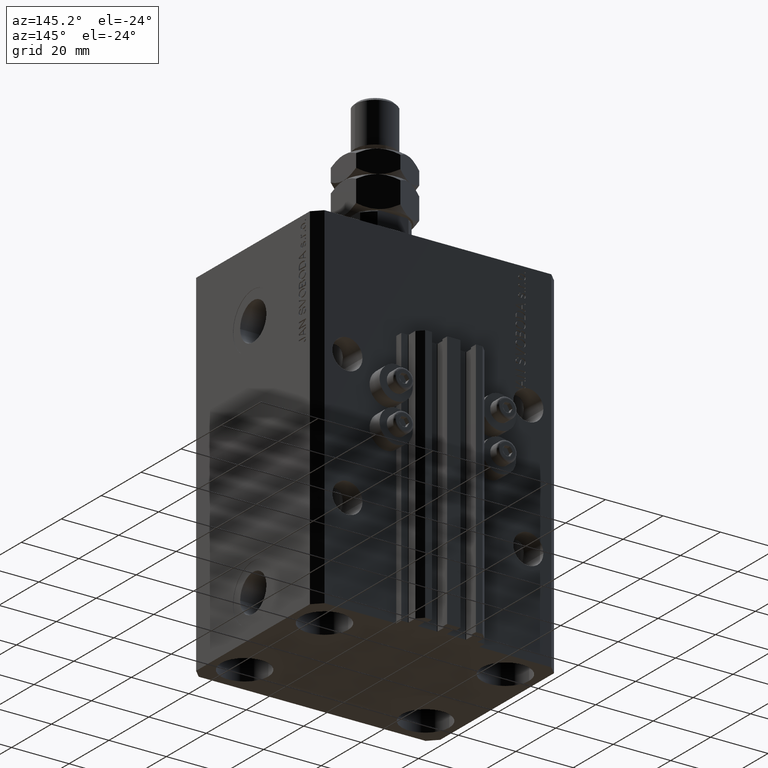
[diagram: clean part render]
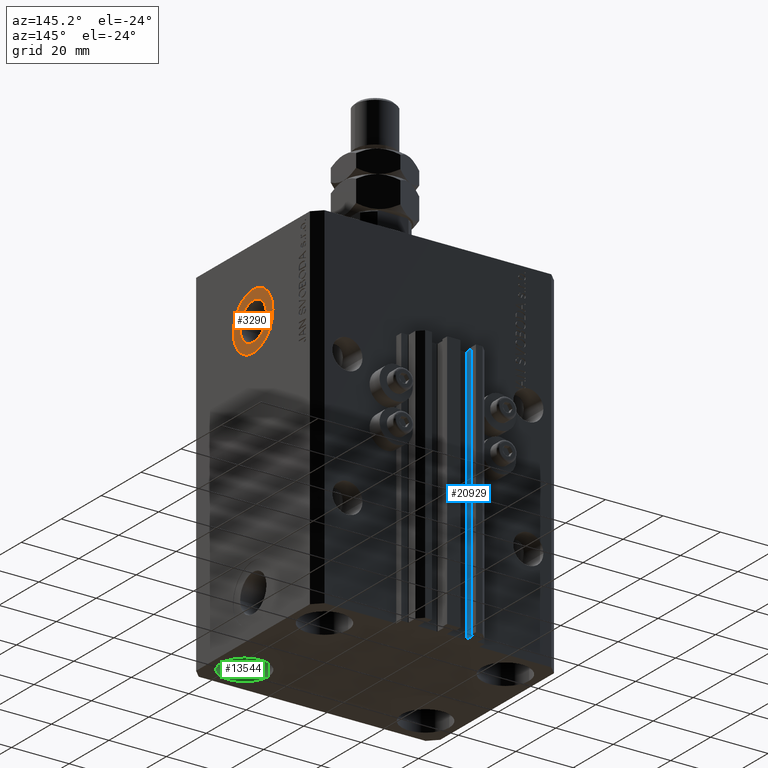
[diagram: same view with three faces highlighted in distinct colors, each labeled with its STEP entity id]
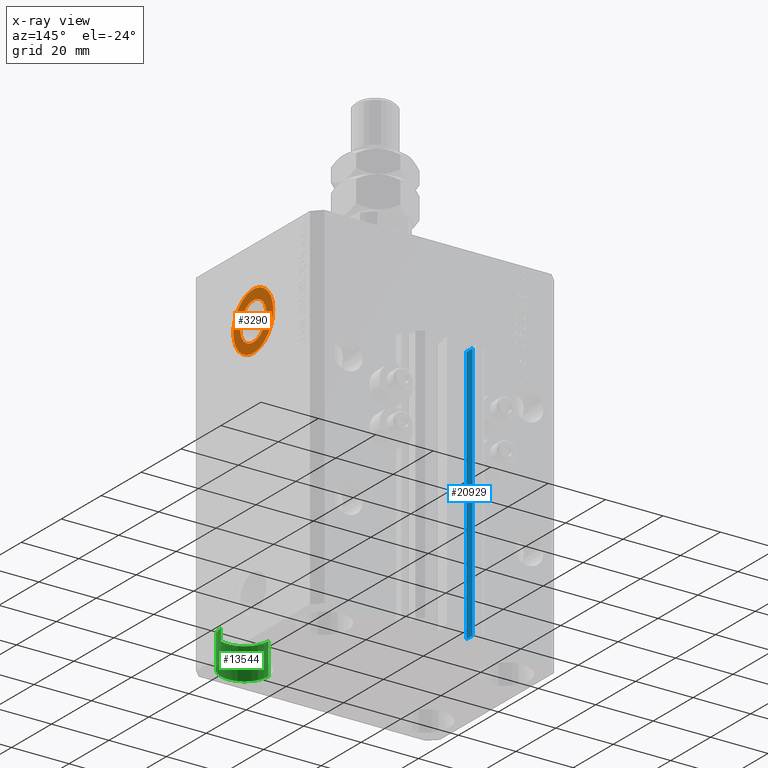
[diagram: x-ray of the same camera — body ghosted, the three highlighted faces saturated]
A machine part, auxiliary view with three faces highlighted in distinct colors.
The next image is the same camera in x-ray (body ghosted, the three faces saturated) — at least one of them is partly hidden behind the body in this view.
Their STEP definitions:

[orange] entity #3290 — the highlighted planar face has unit normal (1, -0, 0).
#103 = VERTEX_POINT ( 'NONE', #25068 ) ;
#1854 = DIRECTION ( 'NONE',  ( 1.318389841742373392E-14, 1.000000000000000000, 0.000000000000000000 ) ) ;
#2335 = EDGE_LOOP ( 'NONE', ( #35337, #41109 ) ) ;
#3029 = CARTESIAN_POINT ( 'NONE',  ( 42.40000000000039648, 9.999999999999623412, -24.00000000000000000 ) ) ;
#3290 = ADVANCED_FACE ( 'NONE', ( #40066, #47607 ), #16709, .T. ) ;
#3416 = DIRECTION ( 'NONE',  ( 1.370906090437597808E-14, 1.000000000000000000, 0.000000000000000000 ) ) ;
#4757 = DIRECTION ( 'NONE',  ( 1.318389841742373392E-14, 1.000000000000000000, 0.000000000000000000 ) ) ;
#5355 = AXIS2_PLACEMENT_3D ( 'NONE', #41648, #7199, #3416 ) ;
#7199 = DIRECTION ( 'NONE',  ( 1.000000000000000000, -1.334402673828349134E-14, 0.000000000000000000 ) ) ;
#8101 = ORIENTED_EDGE ( 'NONE', *, *, #42126, .F. ) ;
#8816 = DIRECTION ( 'NONE',  ( 1.370906090437597808E-14, 1.000000000000000000, 0.000000000000000000 ) ) ;
#8865 = AXIS2_PLACEMENT_3D ( 'NONE', #36195, #32399, #8816 ) ;
#8910 = DIRECTION ( 'NONE',  ( 1.334402673828349134E-14, 1.000000000000000000, 0.000000000000000000 ) ) ;
#11803 = CARTESIAN_POINT ( 'NONE',  ( 42.40000000000026148, -3.763483751660370480E-13, -24.00000000000000000 ) ) ;
#12629 = EDGE_CURVE ( 'NONE', #44535, #45190, #31929, .T. ) ;
#13700 = CIRCLE ( 'NONE', #8865, 6.580000000000002736 ) ;
#16709 = PLANE ( 'NONE',  #19592 ) ;
#16765 = AXIS2_PLACEMENT_3D ( 'NONE', #11803, #42729, #4757 ) ;
#16958 = DIRECTION ( 'NONE',  ( 1.000000000000000000, -1.334402673828349134E-14, 0.000000000000000000 ) ) ;
#17545 = AXIS2_PLACEMENT_3D ( 'NONE', #20981, #36311, #1854 ) ;
#17775 = EDGE_LOOP ( 'NONE', ( #18489, #8101 ) ) ;
#18489 = ORIENTED_EDGE ( 'NONE', *, *, #29485, .F. ) ;
#19254 = VERTEX_POINT ( 'NONE', #44996 ) ;
#19592 = AXIS2_PLACEMENT_3D ( 'NONE', #28006, #16958, #8910 ) ;
#20981 = CARTESIAN_POINT ( 'NONE',  ( 42.40000000000026148, -3.763483751660370480E-13, -24.00000000000000000 ) ) ;
#24788 = CIRCLE ( 'NONE', #16765, 10.00000000000000000 ) ;
#25068 = CARTESIAN_POINT ( 'NONE',  ( 42.40000000000017621, -6.580000000000378435, -24.00000000000000000 ) ) ;
#28006 = CARTESIAN_POINT ( 'NONE',  ( 42.40000000000026148, -3.763483751660370480E-13, -24.00000000000000000 ) ) ;
#29485 = EDGE_CURVE ( 'NONE', #19254, #103, #30228, .T. ) ;
#30228 = CIRCLE ( 'NONE', #5355, 6.580000000000002736 ) ;
#31929 = CIRCLE ( 'NONE', #17545, 10.00000000000000000 ) ;
#32399 = DIRECTION ( 'NONE',  ( 1.000000000000000000, -1.334402673828349134E-14, 0.000000000000000000 ) ) ;
#35337 = ORIENTED_EDGE ( 'NONE', *, *, #12629, .T. ) ;
#36195 = CARTESIAN_POINT ( 'NONE',  ( 42.40000000000026148, -3.763483751660370480E-13, -24.00000000000000000 ) ) ;
#36311 = DIRECTION ( 'NONE',  ( 1.000000000000000000, -1.334402673828349134E-14, 0.000000000000000000 ) ) ;
#37508 = EDGE_CURVE ( 'NONE', #45190, #44535, #24788, .T. ) ;
#40066 = FACE_BOUND ( 'NONE', #17775, .T. ) ;
#41109 = ORIENTED_EDGE ( 'NONE', *, *, #37508, .T. ) ;
#41648 = CARTESIAN_POINT ( 'NONE',  ( 42.40000000000026148, -3.763483751660370480E-13, -24.00000000000000000 ) ) ;
#42126 = EDGE_CURVE ( 'NONE', #103, #19254, #13700, .T. ) ;
#42729 = DIRECTION ( 'NONE',  ( 1.000000000000000000, -1.334402673828349134E-14, 0.000000000000000000 ) ) ;
#43528 = CARTESIAN_POINT ( 'NONE',  ( 42.40000000000013358, -10.00000000000037659, -24.00000000000000000 ) ) ;
#44535 = VERTEX_POINT ( 'NONE', #3029 ) ;
#44996 = CARTESIAN_POINT ( 'NONE',  ( 42.40000000000035385, 6.579999999999626148, -24.00000000000000000 ) ) ;
#45190 = VERTEX_POINT ( 'NONE', #43528 ) ;
#47607 = FACE_OUTER_BOUND ( 'NONE', #2335, .T. ) ;

[blue] entity #20929 — the highlighted planar face has unit normal (1, 0, 0).
#415 = EDGE_LOOP ( 'NONE', ( #25887, #44089, #46826, #1967 ) ) ;
#1354 = VECTOR ( 'NONE', #12704, 1000.000000000000000 ) ;
#1967 = ORIENTED_EDGE ( 'NONE', *, *, #30739, .T. ) ;
#6655 = CARTESIAN_POINT ( 'NONE',  ( -8.400000000000000355, 36.89999999999999858, -123.0000000000000000 ) ) ;
#6858 = CARTESIAN_POINT ( 'NONE',  ( -8.399999999999996803, 33.70000000000000284, -123.0000000000000000 ) ) ;
#7578 = CARTESIAN_POINT ( 'NONE',  ( -8.400000000000000355, 36.89999999999999858, -123.0000000000000000 ) ) ;
#7972 = VECTOR ( 'NONE', #37801, 1000.000000000000000 ) ;
#9328 = VERTEX_POINT ( 'NONE', #6655 ) ;
#10255 = CARTESIAN_POINT ( 'NONE',  ( -8.399999999999996803, 33.70000000000000284, -123.0000000000000000 ) ) ;
#11475 = VERTEX_POINT ( 'NONE', #35560 ) ;
#12009 = VECTOR ( 'NONE', #32555, 1000.000000000000000 ) ;
#12704 = DIRECTION ( 'NONE',  ( -1.084202172485506406E-15, 1.000000000000000000, 0.000000000000000000 ) ) ;
#13249 = FACE_OUTER_BOUND ( 'NONE', #415, .T. ) ;
#17258 = LINE ( 'NONE', #39394, #12009 ) ;
#17554 = DIRECTION ( 'NONE',  ( -1.084202172485506603E-15, 1.000000000000000000, 0.000000000000000000 ) ) ;
#17814 = AXIS2_PLACEMENT_3D ( 'NONE', #10255, #25333, #17554 ) ;
#20929 = ADVANCED_FACE ( 'NONE', ( #13249 ), #21059, .T. ) ;
#21059 = PLANE ( 'NONE',  #17814 ) ;
#22688 = DIRECTION ( 'NONE',  ( 0.000000000000000000, 0.000000000000000000, 1.000000000000000000 ) ) ;
#25226 = LINE ( 'NONE', #29741, #7972 ) ;
#25333 = DIRECTION ( 'NONE',  ( 1.000000000000000000, 1.084202172485506603E-15, -0.000000000000000000 ) ) ;
#25887 = ORIENTED_EDGE ( 'NONE', *, *, #33780, .F. ) ;
#28276 = CARTESIAN_POINT ( 'NONE',  ( -8.399999999999996803, 33.70000000000000284, -33.00000000000000000 ) ) ;
#29741 = CARTESIAN_POINT ( 'NONE',  ( -8.399999999999996803, 33.70000000000000284, -123.0000000000000000 ) ) ;
#30044 = VERTEX_POINT ( 'NONE', #46761 ) ;
#30739 = EDGE_CURVE ( 'NONE', #9328, #30044, #49323, .T. ) ;
#32555 = DIRECTION ( 'NONE',  ( -1.084202172485506406E-15, 1.000000000000000000, 0.000000000000000000 ) ) ;
#33485 = VECTOR ( 'NONE', #22688, 1000.000000000000000 ) ;
#33780 = EDGE_CURVE ( 'NONE', #11475, #30044, #41935, .T. ) ;
#35560 = CARTESIAN_POINT ( 'NONE',  ( -8.399999999999996803, 33.70000000000000284, -33.00000000000000000 ) ) ;
#37051 = VERTEX_POINT ( 'NONE', #6858 ) ;
#37801 = DIRECTION ( 'NONE',  ( 0.000000000000000000, 0.000000000000000000, 1.000000000000000000 ) ) ;
#38343 = EDGE_CURVE ( 'NONE', #37051, #11475, #25226, .T. ) ;
#39394 = CARTESIAN_POINT ( 'NONE',  ( -8.399999999999996803, 33.70000000000000284, -123.0000000000000000 ) ) ;
#41935 = LINE ( 'NONE', #28276, #1354 ) ;
#44089 = ORIENTED_EDGE ( 'NONE', *, *, #38343, .F. ) ;
#46761 = CARTESIAN_POINT ( 'NONE',  ( -8.400000000000000355, 36.89999999999999858, -33.00000000000000000 ) ) ;
#46826 = ORIENTED_EDGE ( 'NONE', *, *, #49630, .T. ) ;
#49323 = LINE ( 'NONE', #7578, #33485 ) ;
#49630 = EDGE_CURVE ( 'NONE', #37051, #9328, #17258, .T. ) ;

[green] entity #13544 — the highlighted cylindrical surface (edge-blend (fillet) strip) has radius 8.25 mm, axis along (-0, -0, -1).
#2726 = EDGE_CURVE ( 'NONE', #25628, #28838, #32354, .T. ) ;
#3986 = ORIENTED_EDGE ( 'NONE', *, *, #17249, .T. ) ;
#6193 = AXIS2_PLACEMENT_3D ( 'NONE', #20305, #10682, #29782 ) ;
#6936 = AXIS2_PLACEMENT_3D ( 'NONE', #48768, #29910, #21630 ) ;
#10682 = DIRECTION ( 'NONE',  ( -0.000000000000000000, -0.000000000000000000, -1.000000000000000000 ) ) ;
#10901 = CARTESIAN_POINT ( 'NONE',  ( 39.74999999999999289, -20.00000000000000000, -112.0000000000000000 ) ) ;
#11802 = CARTESIAN_POINT ( 'NONE',  ( 23.25000000000000355, -20.00000000000000000, -112.0000000000000000 ) ) ;
#13544 = ADVANCED_FACE ( 'NONE', ( #39650 ), #24562, .F. ) ;
#15974 = VECTOR ( 'NONE', #42980, 1000.000000000000000 ) ;
#17249 = EDGE_CURVE ( 'NONE', #28838, #22378, #27634, .T. ) ;
#20260 = EDGE_CURVE ( 'NONE', #25628, #38722, #47822, .T. ) ;
#20305 = CARTESIAN_POINT ( 'NONE',  ( 31.50000000000000000, -20.00000000000000000, -112.0000000000000000 ) ) ;
#20343 = CARTESIAN_POINT ( 'NONE',  ( 39.74999999999999289, -20.00000000000000000, -112.0000000000000000 ) ) ;
#21630 = DIRECTION ( 'NONE',  ( 1.000000000000000000, 0.000000000000000000, 0.000000000000000000 ) ) ;
#22197 = CARTESIAN_POINT ( 'NONE',  ( 23.25000000000000355, -20.00000000000000000, -112.0000000000000000 ) ) ;
#22378 = VERTEX_POINT ( 'NONE', #46068 ) ;
#24562 = CYLINDRICAL_SURFACE ( 'NONE', #6193, 8.249999999999996447 ) ;
#25628 = VERTEX_POINT ( 'NONE', #11802 ) ;
#27634 = LINE ( 'NONE', #20343, #15974 ) ;
#28234 = DIRECTION ( 'NONE',  ( -0.000000000000000000, -0.000000000000000000, 1.000000000000000000 ) ) ;
#28838 = VERTEX_POINT ( 'NONE', #10901 ) ;
#29782 = DIRECTION ( 'NONE',  ( -1.000000000000000000, 0.000000000000000000, 0.000000000000000000 ) ) ;
#29821 = VECTOR ( 'NONE', #40794, 1000.000000000000000 ) ;
#29910 = DIRECTION ( 'NONE',  ( -0.000000000000000000, -0.000000000000000000, 1.000000000000000000 ) ) ;
#32354 = CIRCLE ( 'NONE', #39629, 8.249999999999992895 ) ;
#33134 = EDGE_CURVE ( 'NONE', #38722, #22378, #39856, .T. ) ;
#37318 = ORIENTED_EDGE ( 'NONE', *, *, #20260, .F. ) ;
#38722 = VERTEX_POINT ( 'NONE', #41445 ) ;
#39329 = CARTESIAN_POINT ( 'NONE',  ( 31.50000000000000000, -20.00000000000000000, -112.0000000000000000 ) ) ;
#39629 = AXIS2_PLACEMENT_3D ( 'NONE', #39329, #28234, #43585 ) ;
#39650 = FACE_OUTER_BOUND ( 'NONE', #40455, .T. ) ;
#39856 = CIRCLE ( 'NONE', #6936, 8.249999999999992895 ) ;
#40455 = EDGE_LOOP ( 'NONE', ( #47988, #3986, #47600, #37318 ) ) ;
#40794 = DIRECTION ( 'NONE',  ( -0.000000000000000000, -0.000000000000000000, -1.000000000000000000 ) ) ;
#41445 = CARTESIAN_POINT ( 'NONE',  ( 23.25000000000000355, -20.00000000000000000, -123.0000000000000000 ) ) ;
#42980 = DIRECTION ( 'NONE',  ( -0.000000000000000000, -0.000000000000000000, -1.000000000000000000 ) ) ;
#43585 = DIRECTION ( 'NONE',  ( 1.000000000000000000, 0.000000000000000000, 0.000000000000000000 ) ) ;
#46068 = CARTESIAN_POINT ( 'NONE',  ( 39.74999999999999289, -20.00000000000000000, -123.0000000000000000 ) ) ;
#47600 = ORIENTED_EDGE ( 'NONE', *, *, #33134, .F. ) ;
#47822 = LINE ( 'NONE', #22197, #29821 ) ;
#47988 = ORIENTED_EDGE ( 'NONE', *, *, #2726, .T. ) ;
#48768 = CARTESIAN_POINT ( 'NONE',  ( 31.50000000000000000, -20.00000000000000000, -123.0000000000000000 ) ) ;